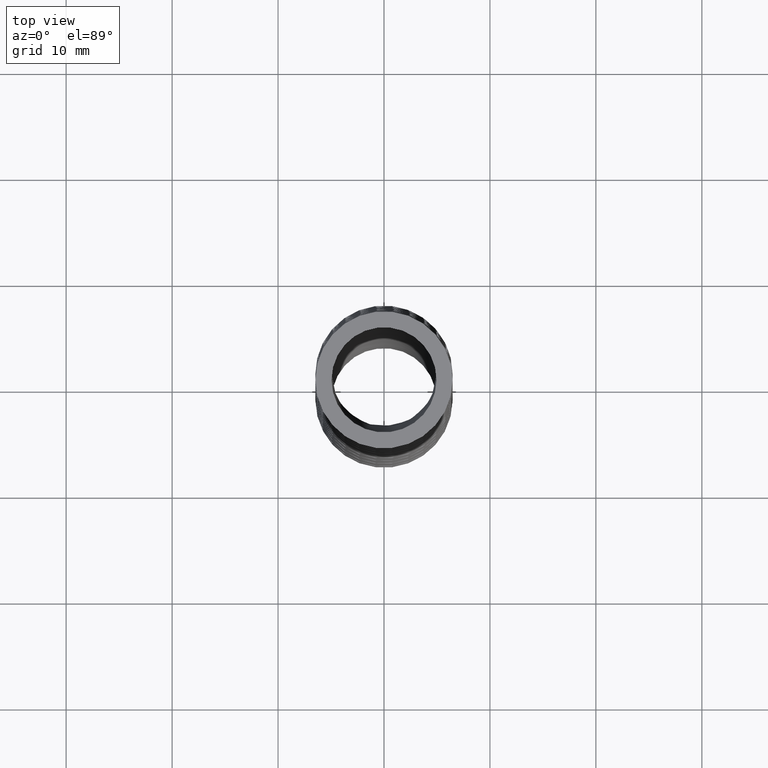
[diagram: clean part render]
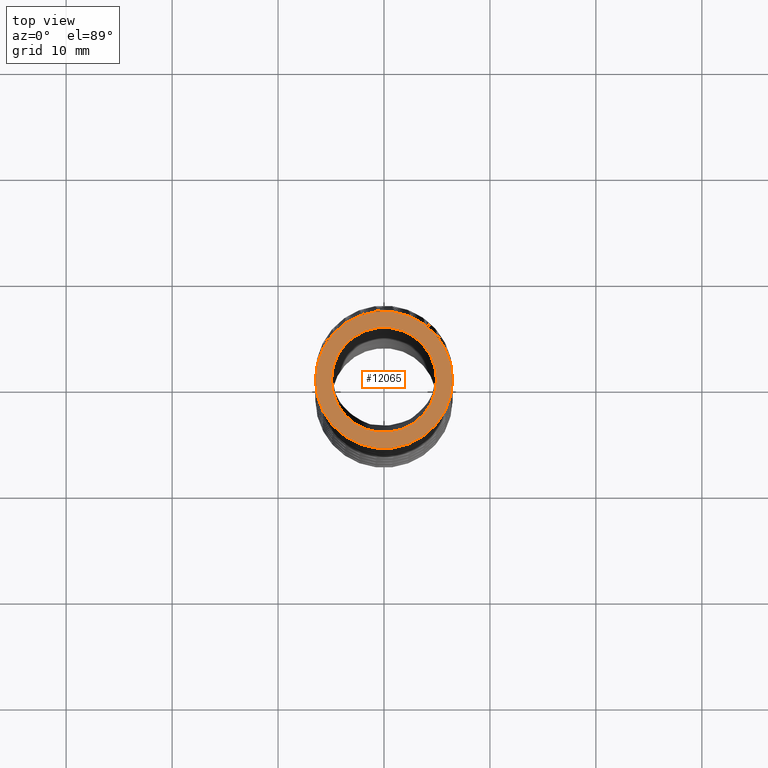
[diagram: same view with one face highlighted and labeled with its STEP entity id]
A machine part, top view. The second image highlights one B-rep face of the part: STEP entity #12065.
In plain terms, the highlighted planar face has unit normal (0, 0, 1).
Its self-contained STEP definition (entity closure, byte-faithful):
#2735 = DIRECTION ( 'NONE',  ( 1.000000000000000000, 0.0000000000000000000, 0.0000000000000000000 ) ) ;
#2803 = DIRECTION ( 'NONE',  ( 0.0000000000000000000, 0.0000000000000000000, 1.000000000000000000 ) ) ;
#2804 = CARTESIAN_POINT ( 'NONE',  ( 0.0000000000000000000, 0.0000000000000000000, 0.0000000000000000000 ) ) ;
#2805 = AXIS2_PLACEMENT_3D ( 'NONE', #2804, #2803, #2735 ) ;
#2806 = CIRCLE ( 'NONE', #2805, 0.1950000000000000100 ) ;
#2918 = CARTESIAN_POINT ( 'NONE',  ( 0.1950000000000000100, 0.0000000000000000000, 0.0000000000000000000 ) ) ;
#7869 = FACE_OUTER_BOUND ( 'NONE', #12140, .T. ) ;
#7870 = FACE_BOUND ( 'NONE', #12064, .T. ) ;
#7900 = DIRECTION ( 'NONE',  ( 1.000000000000000000, 0.0000000000000000000, 0.0000000000000000000 ) ) ;
#7901 = DIRECTION ( 'NONE',  ( 0.0000000000000000000, 0.0000000000000000000, 1.000000000000000000 ) ) ;
#7902 = CARTESIAN_POINT ( 'NONE',  ( 0.0000000000000000000, 0.0000000000000000000, 0.0000000000000000000 ) ) ;
#7903 = AXIS2_PLACEMENT_3D ( 'NONE', #7902, #7901, #7900 ) ;
#7905 = PLANE ( 'NONE',  #7903 ) ;
#8324 = DIRECTION ( 'NONE',  ( 1.000000000000000000, 0.0000000000000000000, 0.0000000000000000000 ) ) ;
#8325 = DIRECTION ( 'NONE',  ( 0.0000000000000000000, 0.0000000000000000000, 1.000000000000000000 ) ) ;
#8326 = CARTESIAN_POINT ( 'NONE',  ( 0.0000000000000000000, 0.0000000000000000000, 0.0000000000000000000 ) ) ;
#8327 = AXIS2_PLACEMENT_3D ( 'NONE', #8326, #8325, #8324 ) ;
#8424 = CIRCLE ( 'NONE', #8327, 0.2550000000000000000 ) ;
#9264 = DIRECTION ( 'NONE',  ( 1.000000000000000000, 0.0000000000000000000, 0.0000000000000000000 ) ) ;
#9265 = DIRECTION ( 'NONE',  ( 0.0000000000000000000, 0.0000000000000000000, 1.000000000000000000 ) ) ;
#9266 = AXIS2_PLACEMENT_3D ( 'NONE', #9273, #9265, #9264 ) ;
#9267 = CIRCLE ( 'NONE', #9266, 0.1950000000000000100 ) ;
#9273 = CARTESIAN_POINT ( 'NONE',  ( 0.0000000000000000000, 0.0000000000000000000, 0.0000000000000000000 ) ) ;
#11428 = VERTEX_POINT ( 'NONE', #14292 ) ;
#11430 = VERTEX_POINT ( 'NONE', #14291 ) ;
#11434 = EDGE_CURVE ( 'NONE', #11435, #11430, #14346, .T. ) ;
#11435 = VERTEX_POINT ( 'NONE', #14347 ) ;
#11688 = VERTEX_POINT ( 'NONE', #2918 ) ;
#11689 = EDGE_CURVE ( 'NONE', #11688, #11428, #2806, .T. ) ;
#12064 = EDGE_LOOP ( 'NONE', ( #12136, #12141 ) ) ;
#12065 = ADVANCED_FACE ( 'NONE', ( #7870, #7869 ), #7905, .T. ) ;
#12108 = EDGE_CURVE ( 'NONE', #11430, #11435, #8424, .T. ) ;
#12109 = ORIENTED_EDGE ( 'NONE', *, *, #11434, .T. ) ;
#12136 = ORIENTED_EDGE ( 'NONE', *, *, #11689, .F. ) ;
#12140 = EDGE_LOOP ( 'NONE', ( #12186, #12109 ) ) ;
#12141 = ORIENTED_EDGE ( 'NONE', *, *, #12198, .F. ) ;
#12186 = ORIENTED_EDGE ( 'NONE', *, *, #12108, .T. ) ;
#12198 = EDGE_CURVE ( 'NONE', #11428, #11688, #9267, .T. ) ;
#14291 = CARTESIAN_POINT ( 'NONE',  ( 0.2550000000000000000, 0.0000000000000000000, 0.0000000000000000000 ) ) ;
#14292 = CARTESIAN_POINT ( 'NONE',  ( -0.1950000000000000100, 2.388061258337338700E-017, 0.0000000000000000000 ) ) ;
#14342 = DIRECTION ( 'NONE',  ( 1.000000000000000000, 0.0000000000000000000, 0.0000000000000000000 ) ) ;
#14343 = DIRECTION ( 'NONE',  ( 0.0000000000000000000, 0.0000000000000000000, 1.000000000000000000 ) ) ;
#14344 = CARTESIAN_POINT ( 'NONE',  ( 0.0000000000000000000, 0.0000000000000000000, 0.0000000000000000000 ) ) ;
#14345 = AXIS2_PLACEMENT_3D ( 'NONE', #14344, #14343, #14342 ) ;
#14346 = CIRCLE ( 'NONE', #14345, 0.2550000000000000000 ) ;
#14347 = CARTESIAN_POINT ( 'NONE',  ( -0.2550000000000000000, 3.122849337825751200E-017, 0.0000000000000000000 ) ) ;